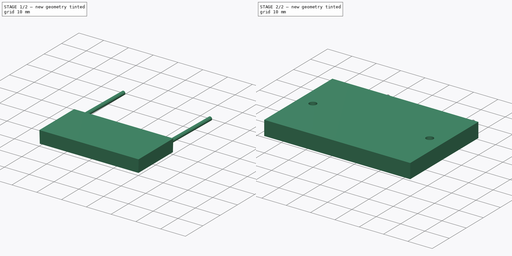
[diagram: build sequence overview — one tinted view per stage of 2, left to right]
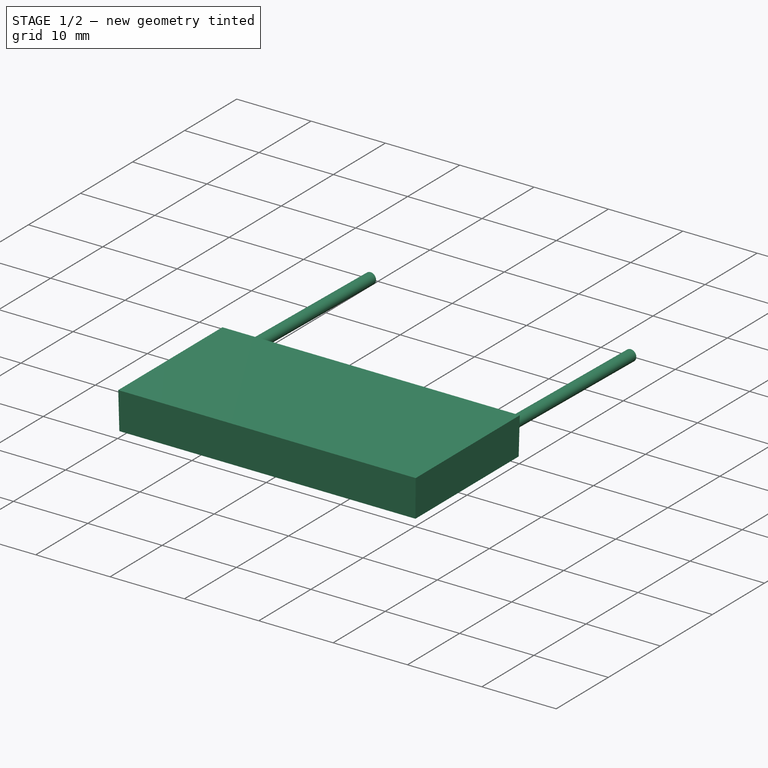
[diagram: stage 1 of 2 — iso view after this stage's code; geometry added in this stage tinted green]
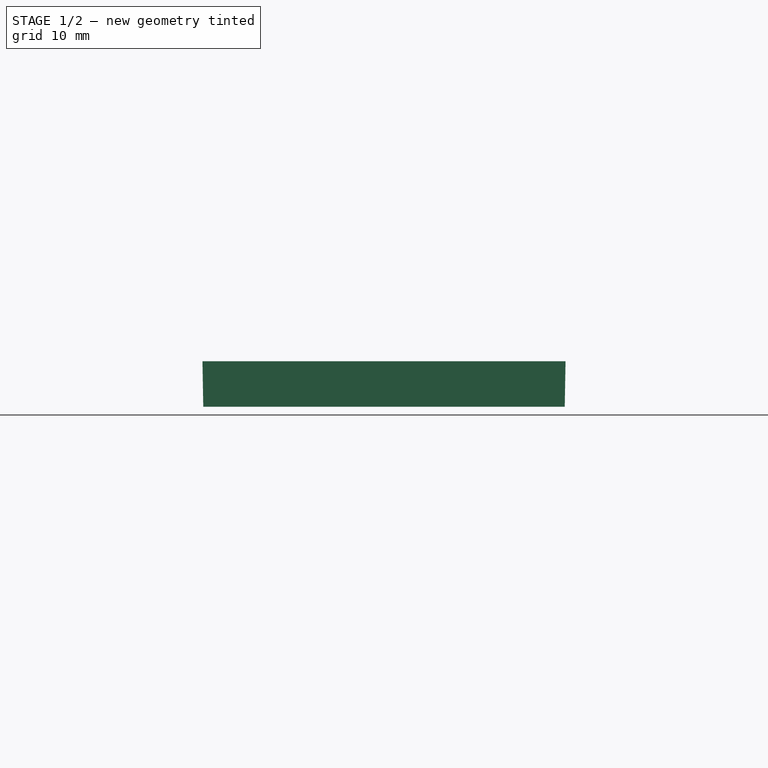
[diagram: stage 1 of 2 — front view after this stage's code; geometry added in this stage tinted green]
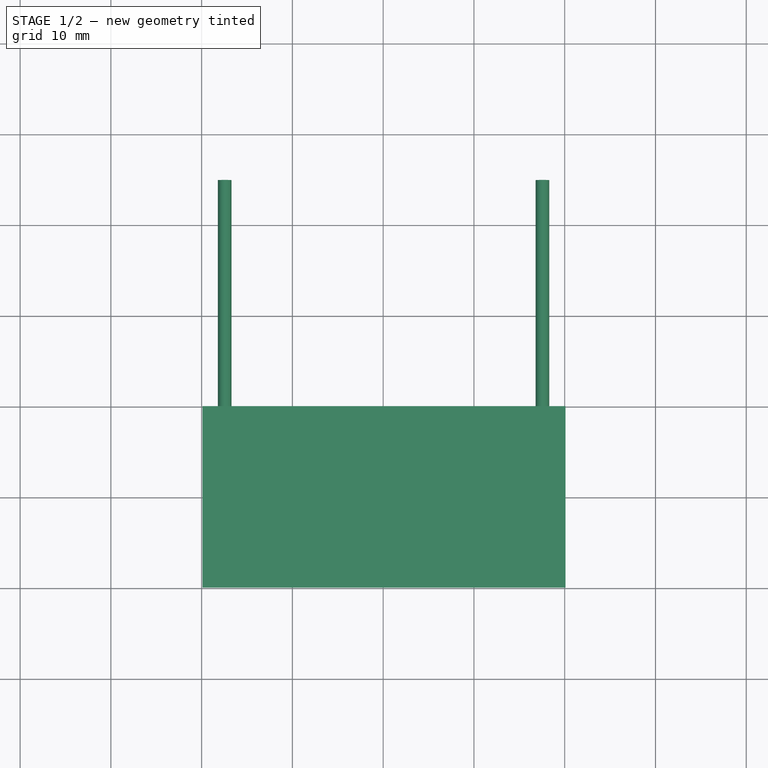
[diagram: stage 1 of 2 — top view after this stage's code; geometry added in this stage tinted green]
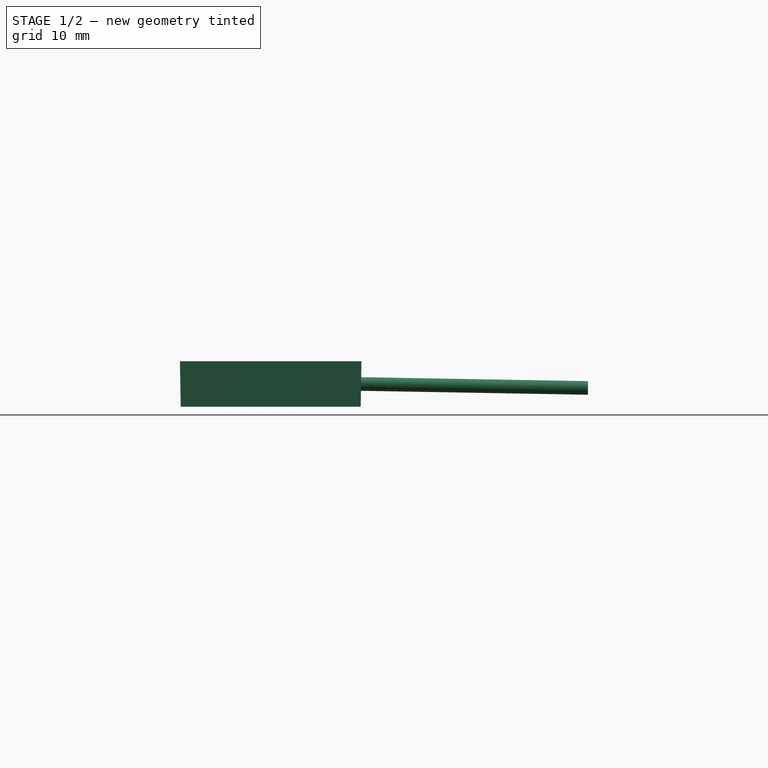
[diagram: stage 1 of 2 — right view after this stage's code; geometry added in this stage tinted green]
FCSTD DOCUMENT  (FreeCAD 0.21R33771 (Git))
Label: Config-Peltier
License: All rights reserved
LicenseURL: http://en.wikipedia.org/wiki/All_rights_reserved
objects: Sketcher::SketchObject×4, PartDesign::Pad×4, PartDesign::Body×3, PartDesign::Plane×2, TechDraw::DrawSVGTemplate×1, TechDraw::DrawPage×1, PartDesign::ShapeBinder×1
note: 18 computed .brp shape members not serialized (recipe doc carries the construction recipe); baked Part::Feature solids carry a one-line shape summary decoded from their .brp

FEATURE [Sketcher::SketchObject] Sketch
  FullyConstrained = true
  MapMode = 5
  Support = -> [XY_Plane]
  sketch-geometry (6):
    g0: Circle CenterX=-24.0764 CenterY=0.06715 CenterZ=0 NormalX=0 NormalY=0 NormalZ=1 AngleXU=0 Radius=1.5
    g1: Circle CenterX=23.9236 CenterY=0.06715 CenterZ=0 NormalX=0 NormalY=0 NormalZ=1 AngleXU=0 Radius=1.5
    g2: LineSegment StartX=-30.0764 StartY=20.0671 StartZ=0 EndX=29.9236 EndY=20.0671 EndZ=0
    g3: LineSegment StartX=29.9236 StartY=20.0671 StartZ=0 EndX=29.9236 EndY=-19.9329 EndZ=0
    g4: LineSegment StartX=29.9236 StartY=-19.9329 StartZ=0 EndX=-30.0764 EndY=-19.9329 EndZ=0
    g5: LineSegment StartX=-30.0764 StartY=-19.9329 StartZ=0 EndX=-30.0764 EndY=20.0671 EndZ=0
  constraints (18):
    c: Diameter(g1) = 3
    c: Diameter(g0) = 3
    c: Distance(g0,g-1) = 0.06715
    c: Coincident(g2,g3)
    c: Coincident(g3,g4)
    c: Coincident(g4,g5)
    c: Coincident(g5,g2)
    c: Horizontal(g2)
    c: Horizontal(g4)
    c: Vertical(g3)
    c: Vertical(g5)
    c: Distance(g3) = 40
    c: Distance(g2) = 60
    c: Distance(g1,g3) = 6
    c: Distance(g1,g2) = 20
    c: Distance(g0,g5) = 6
    c: Distance(g0,g2) = 20
    c: Block(g4)
FEATURE [TechDraw::DrawSVGTemplate] Template
  EditableTexts = Designed_by_Name=Designed by Name; Drawing_number=Drawing number; FC-Date=Date; FC-SC=Scale; FC-SH=Sheet; FC-Title=Title; Subtitle=Subtitle; Weight=Weight
  Height = 210
  Orientation = 1
  Width = 297
FEATURE [TechDraw::DrawPage] Page
  KeepUpdated = true
  NextBalloonIndex = 1
  ProjectionType = 0
  Template = -> Template
FEATURE [PartDesign::ShapeBinder] CopyPad
  TraceSupport = false
FEATURE [PartDesign::Plane] DatumPlane
  Length = 60
  MapMode = 5
  Placement = pos=(0,0,0) rot=(1,0,0;3.14159rad)
  ResizeMode = 0
  Support = -> [CopyPad]
  Width = 60
FEATURE [Sketcher::SketchObject] Sketch002
  FullyConstrained = true
  MapMode = 5
  Placement = pos=(0,0,0) rot=(1,0,0;3.14159rad)
  Support = -> [DatumPlane]
  sketch-geometry (4):
    g0: LineSegment StartX=-19.909 StartY=9.99788 StartZ=0 EndX=20.091 EndY=9.99788 EndZ=0
    g1: LineSegment StartX=20.091 StartY=9.99788 StartZ=0 EndX=20.091 EndY=-10.0021 EndZ=0
    g2: LineSegment StartX=20.091 StartY=-10.0021 StartZ=0 EndX=-19.909 EndY=-10.0021 EndZ=0
    g3: LineSegment StartX=-19.909 StartY=-10.0021 StartZ=0 EndX=-19.909 EndY=9.99788 EndZ=0
  constraints (11):
    c: Coincident(g0,g1)
    c: Coincident(g1,g2)
    c: Coincident(g2,g3)
    c: Coincident(g3,g0)
    c: Horizontal(g0)
    c: Horizontal(g2)
    c: Vertical(g1)
    c: Vertical(g3)
    c: Distance(g0) = 40
    c: Distance(g1) = 20
    c: Block(g2)
FEATURE [PartDesign::Pad] Pad002
  Direction = (1,1,1)
  Length = 5
  Length2 = 10
  Placement = pos=(0,0,0) rot=(1,0,0;3.14159rad)
  Profile = -> Sketch002
  ReferenceAxis = -> Sketch002 [N_Axis]
  TaperAngle = -1
  Type = 0
FEATURE [PartDesign::Body] Body002  label="Placa-Inf"
  Group = -> [Sketch003,Pad003]
  Origin = -> Origin002
  Placement = pos=(0,0,-12) rot=(0,0,1;0rad)
  Tip = -> Pad003
FEATURE [PartDesign::Plane] DatumPlane001
  Length = 60.9511
  MapMode = 45
  Placement = pos=(0.0910191,9.95852,-2.49818) rot=(0.58068,0.58068,0.570633;4.17868rad)
  ResizeMode = 0
  Support = -> [Pad002]
  Width = 60.0861
FEATURE [Sketcher::SketchObject] Sketch004
  FullyConstrained = true
  MapMode = 5
  Placement = pos=(0.0910191,9.95852,-2.49818) rot=(0.58068,0.58068,0.570633;4.17868rad)
  Support = -> [DatumPlane001]
  sketch-geometry (2):
    g0: Circle CenterX=0 CenterY=17.4497 CenterZ=0 NormalX=0 NormalY=0 NormalZ=1 AngleXU=0 Radius=0.75
    g1: Circle CenterX=0 CenterY=-17.5503 CenterZ=0 NormalX=0 NormalY=0 NormalZ=1 AngleXU=0 Radius=0.75
  constraints (6):
    c: Diameter(g0) = 1.5
    c: DistanceX(g-2,g0) = 0
    c: Block(g0)
    c: Diameter(g1) = 1.5
    c: DistanceX(g-2,g1) = 0
    c: DistanceY(g1,g0) = 35
FEATURE [PartDesign::Pad] Pad004
  BaseFeature = -> Pad002
  Direction = (0,1,-0.02)
  Length = 25
  Length2 = 10
  Placement = pos=(0,0,0) rot=(1,0,0;3.14159rad)
  Profile = -> Sketch004
  ReferenceAxis = -> Sketch004 [N_Axis]
  Type = 0
FEATURE [PartDesign::Body] Body001  label="Peltier"
  Group = -> [DatumPlane,CopyPad,Sketch002,Pad002,DatumPlane001,Sketch004,Pad004]
  Origin = -> Origin001
  Tip = -> Pad004
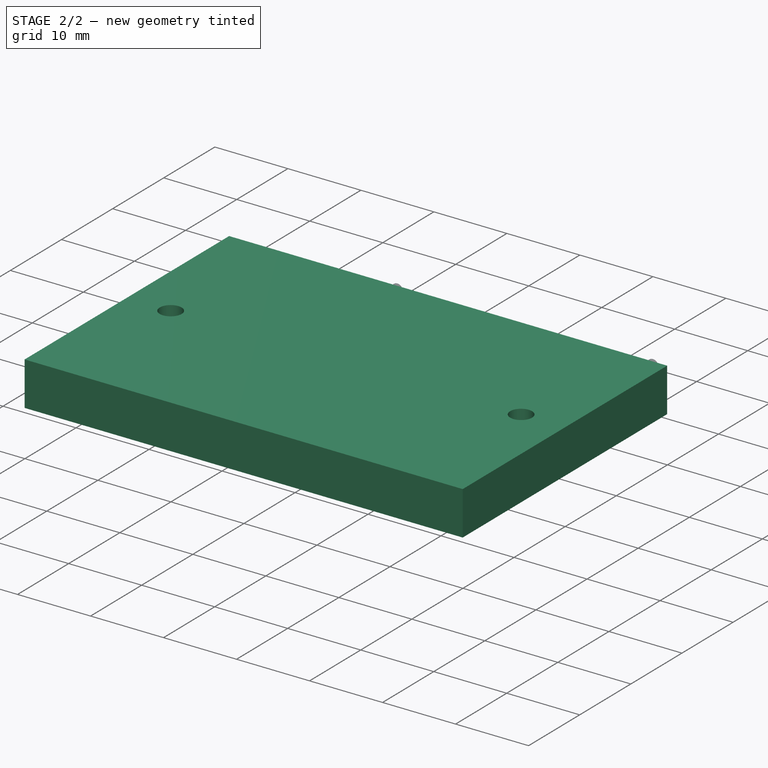
[diagram: stage 2 of 2 — iso view after this stage's code; geometry added in this stage tinted green]
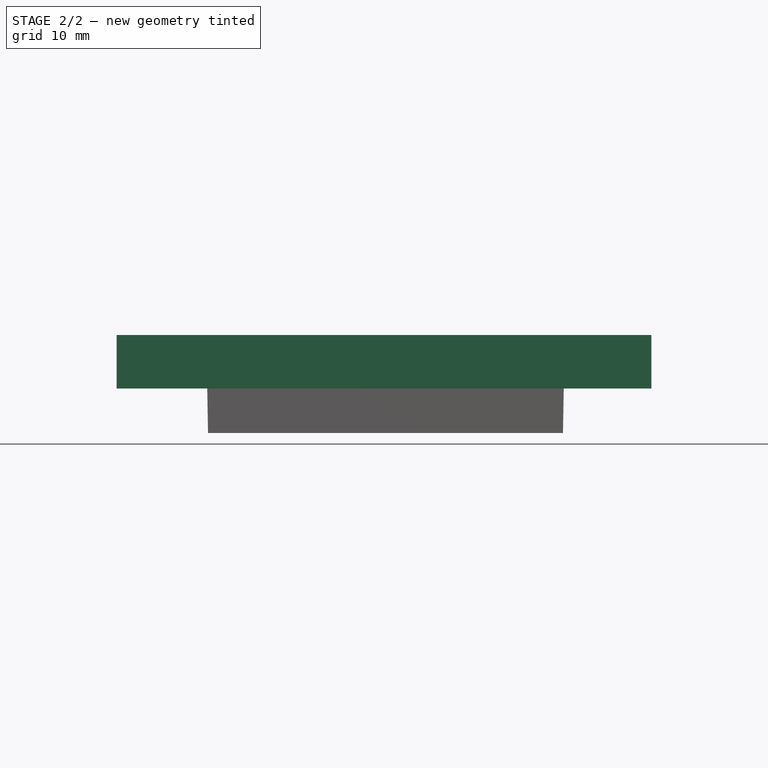
[diagram: stage 2 of 2 — front view after this stage's code; geometry added in this stage tinted green]
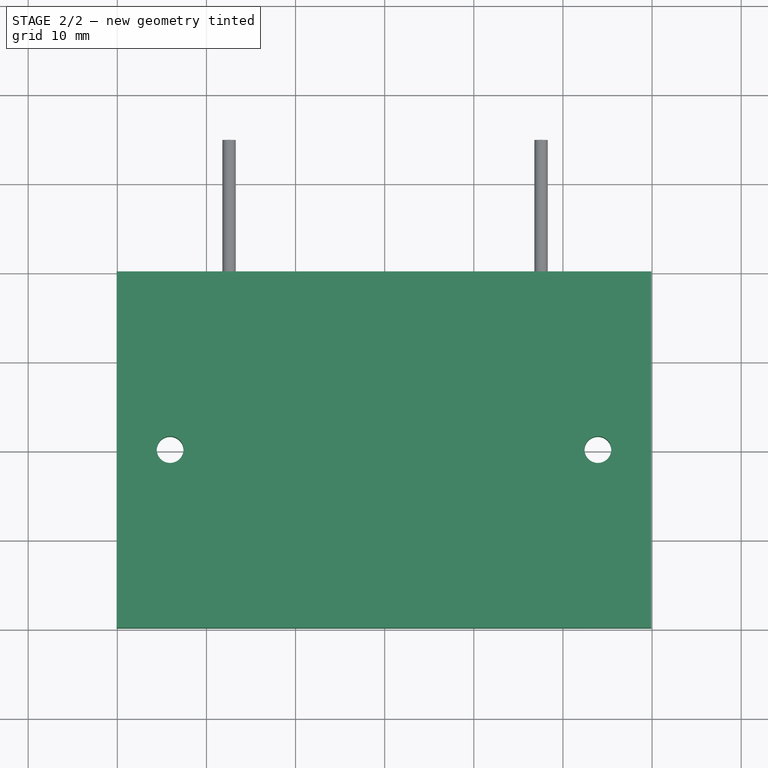
[diagram: stage 2 of 2 — top view after this stage's code; geometry added in this stage tinted green]
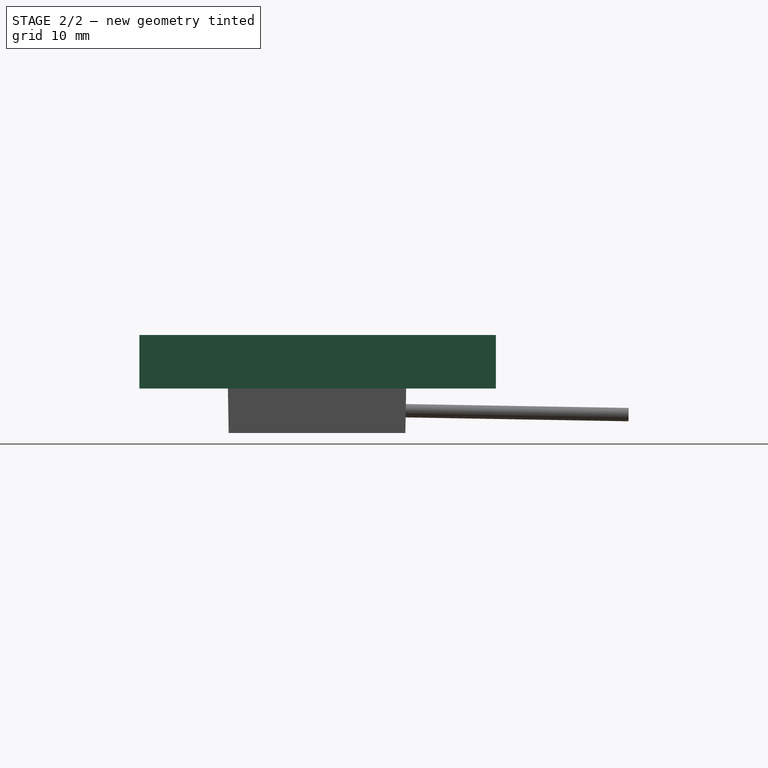
[diagram: stage 2 of 2 — right view after this stage's code; geometry added in this stage tinted green]
FEATURE [PartDesign::Pad] Pad
  Direction = (0,0,1)
  Length = 6
  Length2 = 10
  Profile = -> Sketch
  ReferenceAxis = -> Sketch [N_Axis]
  Type = 0
FEATURE [PartDesign::Body] Body  label="Placa-Sup"
  Group = -> [Sketch,Pad]
  Origin = -> Origin
  Placement = pos=(0,0,1) rot=(0,0,1;0rad)
  Tip = -> Pad
FEATURE [Sketcher::SketchObject] Sketch003
  FullyConstrained = true
  MapMode = 5
  Support = -> [XY_Plane002]
  sketch-geometry (6):
    g0: Circle CenterX=-24.0764 CenterY=0.06715 CenterZ=0 NormalX=0 NormalY=0 NormalZ=1 AngleXU=0 Radius=1.5
    g1: Circle CenterX=23.9236 CenterY=0.06715 CenterZ=0 NormalX=0 NormalY=0 NormalZ=1 AngleXU=0 Radius=1.5
    g2: LineSegment StartX=-30.0764 StartY=20.0671 StartZ=0 EndX=29.9236 EndY=20.0671 EndZ=0
    g3: LineSegment StartX=29.9236 StartY=20.0671 StartZ=0 EndX=29.9236 EndY=-19.9329 EndZ=0
    g4: LineSegment StartX=29.9236 StartY=-19.9329 StartZ=0 EndX=-30.0764 EndY=-19.9329 EndZ=0
    g5: LineSegment StartX=-30.0764 StartY=-19.9329 StartZ=0 EndX=-30.0764 EndY=20.0671 EndZ=0
  constraints (18):
    c: Diameter(g1) = 3
    c: Diameter(g0) = 3
    c: Distance(g0,g-1) = 0.06715
    c: Coincident(g2,g3)
    c: Coincident(g3,g4)
    c: Coincident(g4,g5)
    c: Coincident(g5,g2)
    c: Horizontal(g2)
    c: Horizontal(g4)
    c: Vertical(g3)
    c: Vertical(g5)
    c: Distance(g3) = 40
    c: Distance(g2) = 60
    c: Distance(g1,g3) = 6
    c: Distance(g1,g2) = 20
    c: Distance(g0,g5) = 6
    c: Distance(g0,g2) = 20
    c: Block(g4)
FEATURE [PartDesign::Pad] Pad003
  Direction = (0,0,1)
  Length = 6
  Length2 = 10
  Profile = -> Sketch003
  ReferenceAxis = -> Sketch003 [N_Axis]
  Type = 0
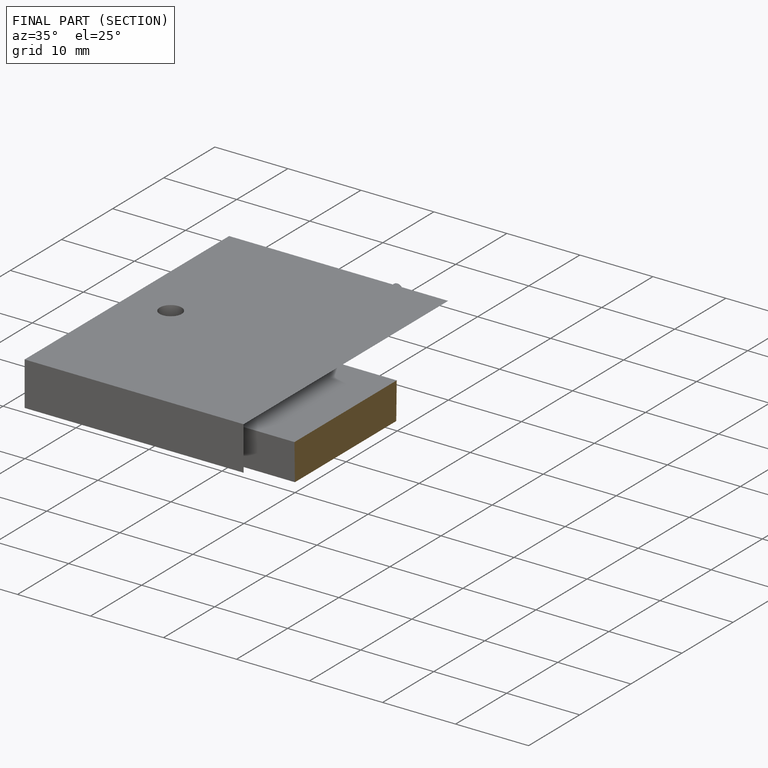
[diagram: finished part — half-section view (interior)]
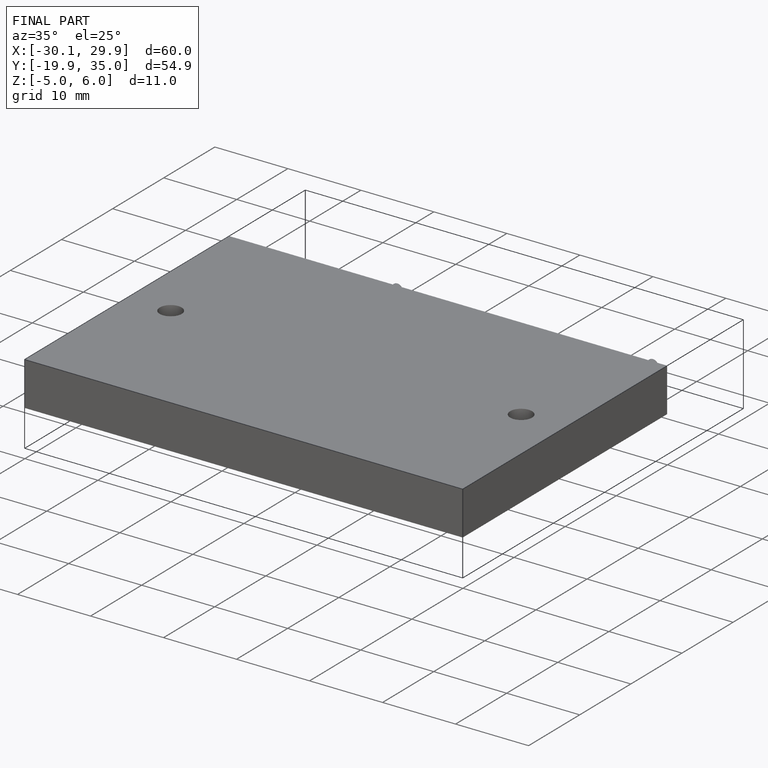
[diagram: finished part — iso view with bounding-box wireframe]
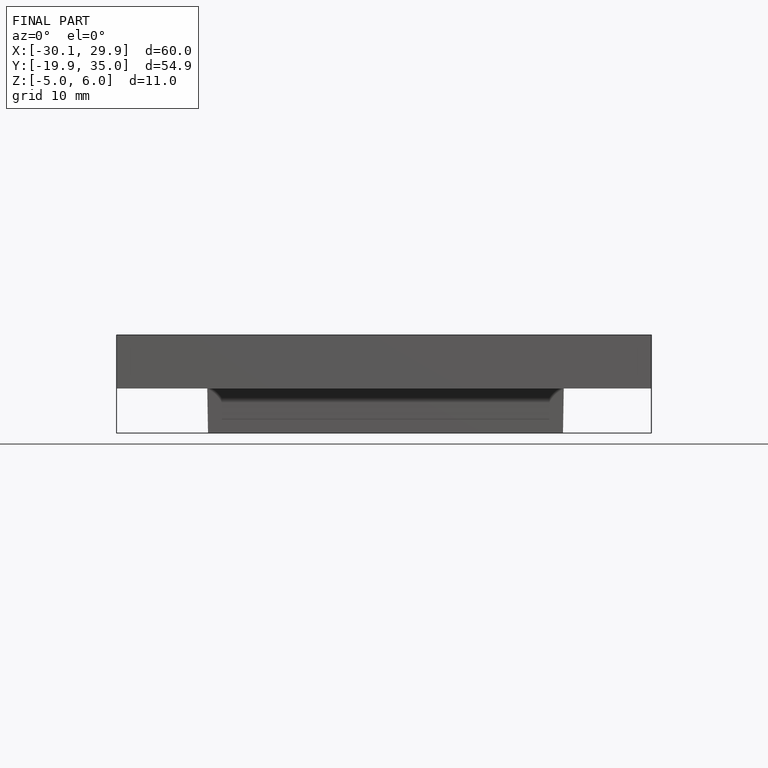
[diagram: finished part — front view with bounding-box wireframe]
